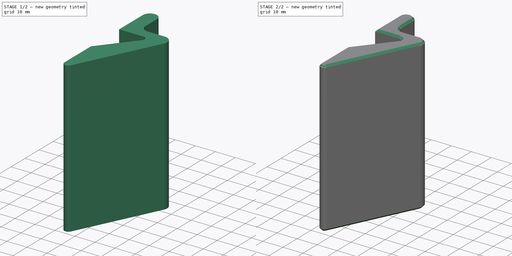
[diagram: build sequence overview — one tinted view per stage of 2, left to right]
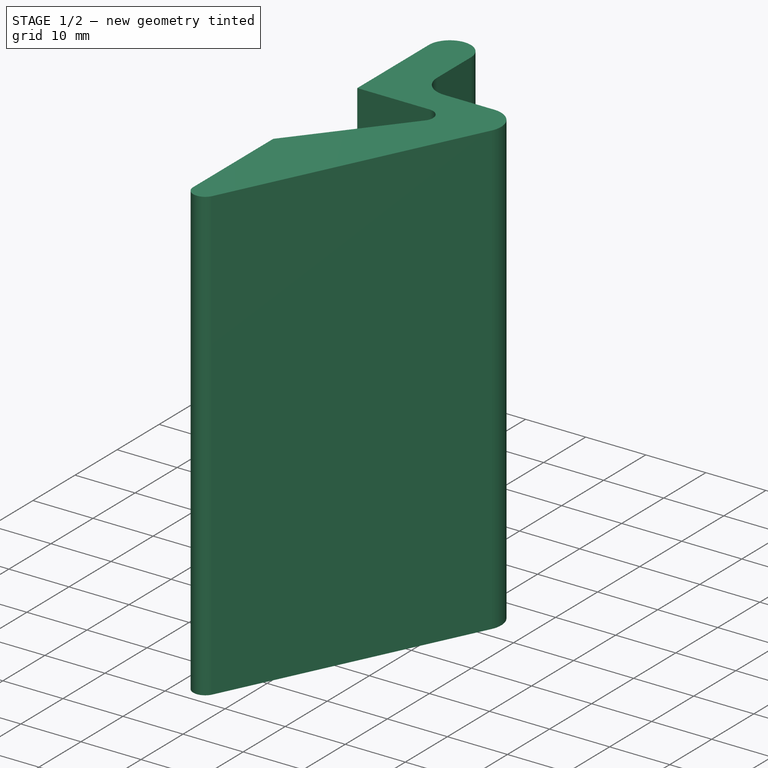
[diagram: stage 1 of 2 — iso view after this stage's code; geometry added in this stage tinted green]
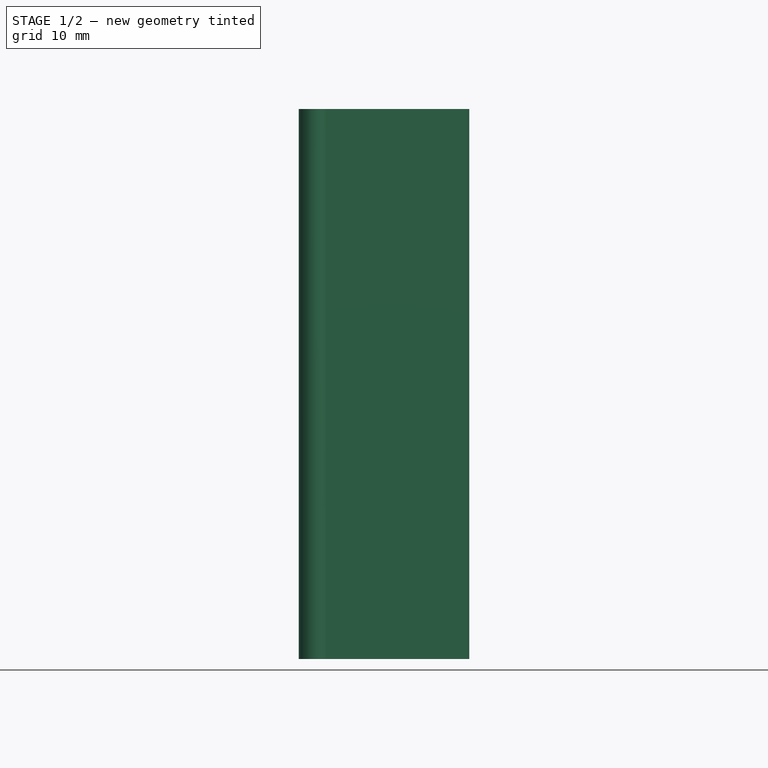
[diagram: stage 1 of 2 — front view after this stage's code; geometry added in this stage tinted green]
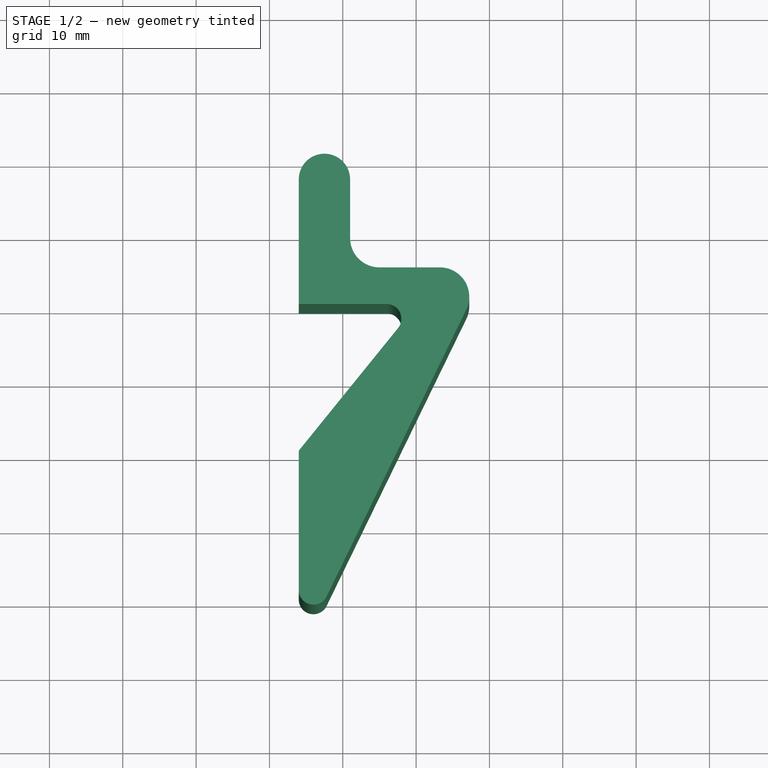
[diagram: stage 1 of 2 — top view after this stage's code; geometry added in this stage tinted green]
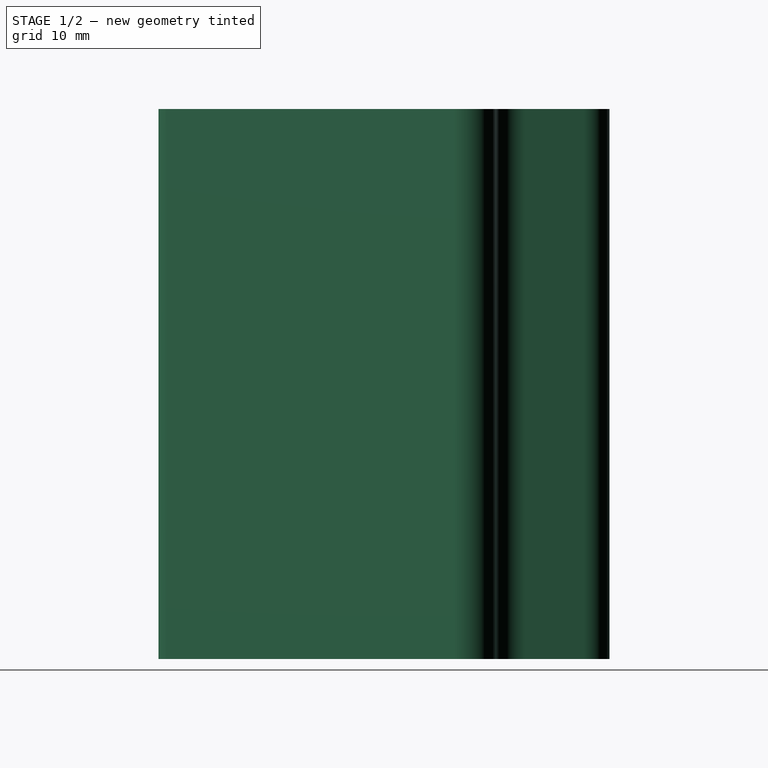
[diagram: stage 1 of 2 — right view after this stage's code; geometry added in this stage tinted green]
FCSTD DOCUMENT  (FreeCAD 0.22R33981 (Git))
Label: shelf support
License: All rights reserved
LicenseURL: http://en.wikipedia.org/wiki/All_rights_reserved
objects: Sketcher::SketchObject×1, PartDesign::Pad×1, PartDesign::Chamfer×1, PartDesign::Body×1
note: 6 computed .brp shape members not serialized (recipe doc carries the construction recipe); baked Part::Feature solids carry a one-line shape summary decoded from their .brp

FEATURE [Sketcher::SketchObject] Sketch
  FullyConstrained = false
  MapMode = 5
  Support = -> [XY_Plane]
  sketch-geometry (12):
    g0: LineSegment StartX=4 StartY=27 StartZ=0 EndX=4 EndY=10 EndZ=0
    g1: LineSegment StartX=4 StartY=10 StartZ=0 EndX=16 EndY=10 EndZ=0
    g2: ArcOfCircle CenterX=16 CenterY=8 CenterZ=0 NormalX=0 NormalY=0 NormalZ=1 AngleXU=0 Radius=2 StartAngle=5.6026 EndAngle=7.85398
    g3: LineSegment StartX=17.5544 StartY=6.7415 StartZ=0 EndX=4 EndY=-10 EndZ=0
    g4: LineSegment StartX=4 StartY=-10 StartZ=0 EndX=4 EndY=-29.0019 EndZ=0
    g5: LineSegment StartX=7.79828 StartY=-29.8773 StartZ=0 EndX=26.8433 EndY=9.24936 EndZ=0
    g6: ArcOfCircle CenterX=23.2468 CenterY=11 CenterZ=0 NormalX=0 NormalY=0 NormalZ=1 AngleXU=0 Radius=4 StartAngle=5.83019 EndAngle=7.85398
    g7: LineSegment StartX=11 StartY=27 StartZ=0 EndX=11 EndY=19 EndZ=0
    g8: LineSegment StartX=15 StartY=15 StartZ=0 EndX=23.2468 EndY=15 EndZ=0
    g9: ArcOfCircle CenterX=15 CenterY=19 CenterZ=0 NormalX=0 NormalY=0 NormalZ=1 AngleXU=0 Radius=4 StartAngle=3.14159 EndAngle=4.71239
    g10: ArcOfCircle CenterX=7.5 CenterY=27 CenterZ=0 NormalX=0 NormalY=0 NormalZ=1 AngleXU=0 Radius=3.5 StartAngle=2e-16 EndAngle=3.14159
    g11: ArcOfCircle CenterX=6 CenterY=-29.0019 CenterZ=0 NormalX=0 NormalY=0 NormalZ=1 AngleXU=0 Radius=2 StartAngle=3.14159 EndAngle=5.83019
  constraints (28):
    c: Vertical(g0)
    c: Coincident(g0,g1)
    c: Horizontal(g1)
    c: Tangent(g1,g2) = 1.5708
    c: Tangent(g2,g3) = 1.5708
    c: Coincident(g3,g4)
    c: Vertical(g4)
    c: Tangent(g5,g6) = -1.5708
    c: Vertical(g7)
    c: Horizontal(g8)
    c: DistanceX(g0,g1) = 12
    c: DistanceY(g3,g0) = 20
    c: Tangent(g8,g6) = 1.5708
    c: Tangent(g8,g9) = -1.5708
    c: Tangent(g7,g9) = -1.5708
    c: Radius(g9) = 4
    c: Tangent(g10,g7) = 1.5708
    c: Tangent(g10,g0) = -1.5708
    c: DistanceY(g7,g7) = 8
    c: Radius(g2) = 2
    c: Radius(g6) = 4
    c: DistanceY(g0,g8) = 5
    c: DistanceX(g0,g7) = 7
    c: Symmetric(g0,g3,g-1)
    c: DistanceX(g-1,g3) = 4
    c: Tangent(g5,g11) = -1.5708
    c: Tangent(g4,g11) = -1.5708
    c: Radius(g11) = 2
FEATURE [PartDesign::Pad] Pad
  Direction = (0,0,1)
  Length = 75
  Length2 = 10
  Profile = -> Sketch
  ReferenceAxis = -> Sketch [N_Axis]
  Type = 0
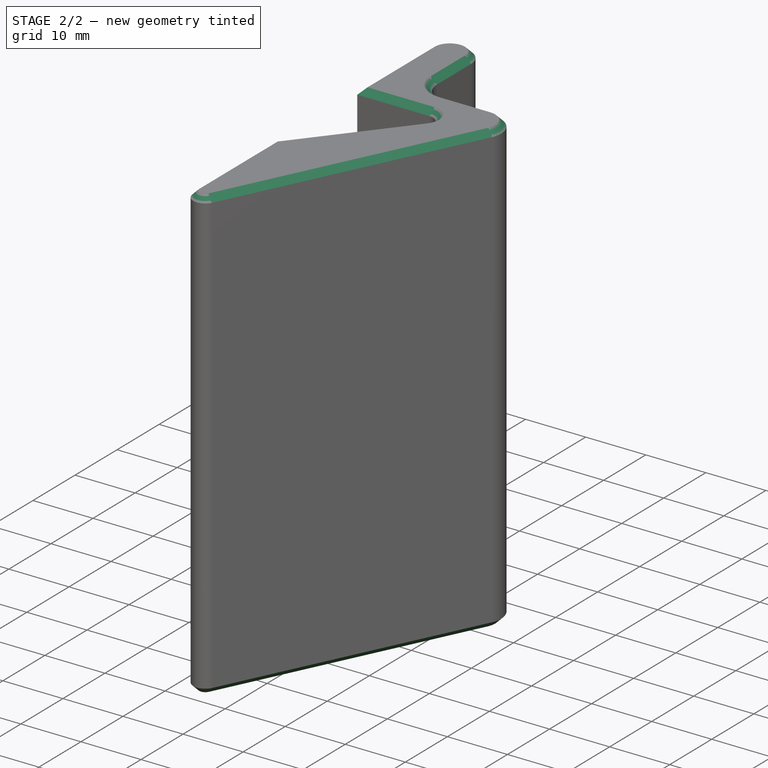
[diagram: stage 2 of 2 — iso view after this stage's code; geometry added in this stage tinted green]
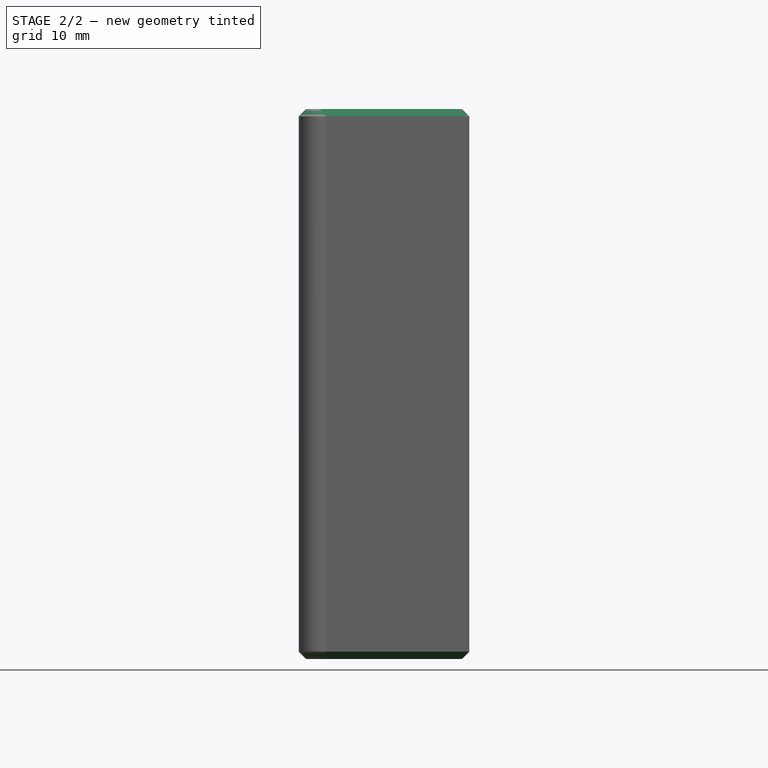
[diagram: stage 2 of 2 — front view after this stage's code; geometry added in this stage tinted green]
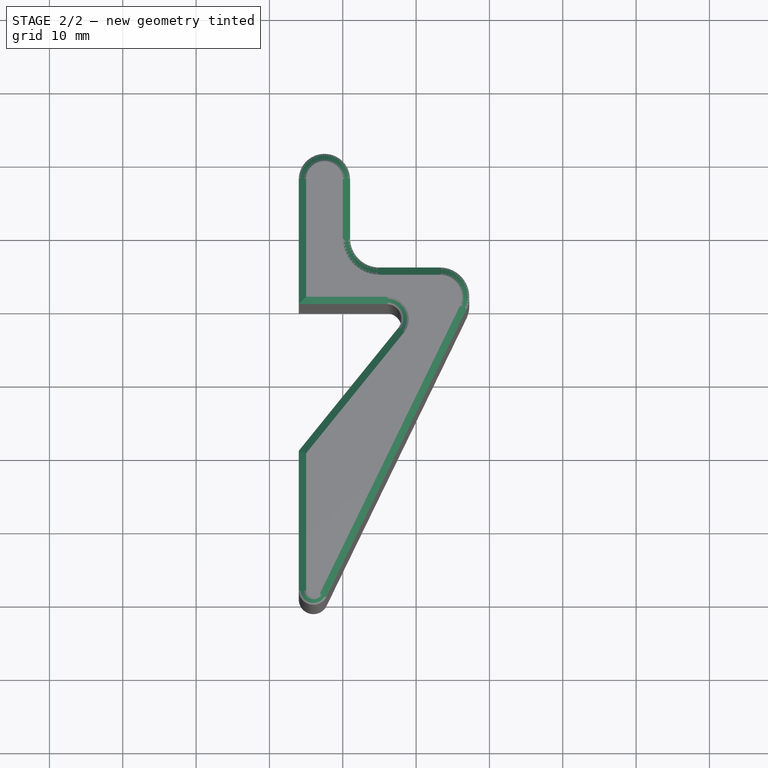
[diagram: stage 2 of 2 — top view after this stage's code; geometry added in this stage tinted green]
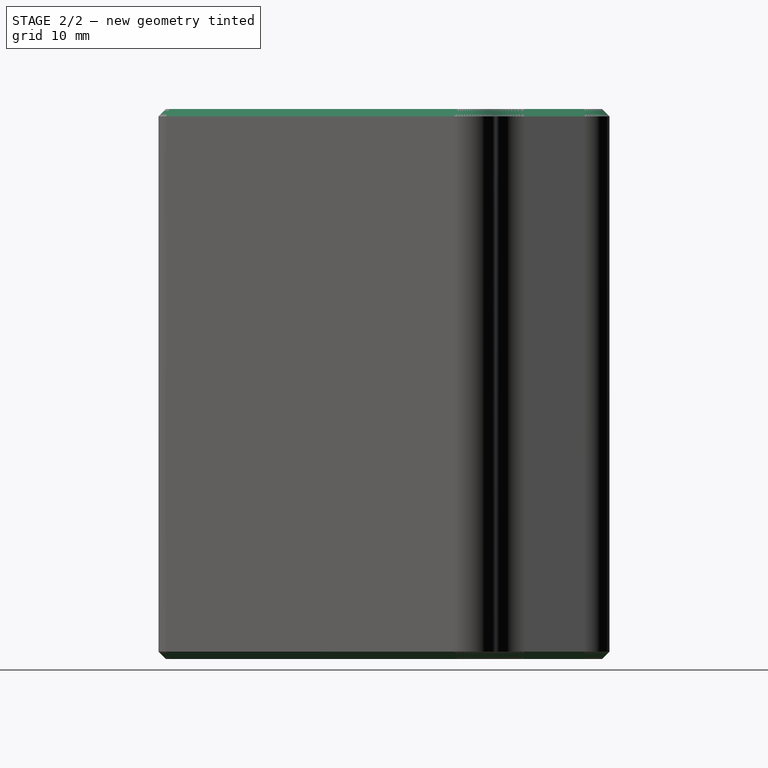
[diagram: stage 2 of 2 — right view after this stage's code; geometry added in this stage tinted green]
FEATURE [PartDesign::Chamfer] Chamfer
  Angle = 45
  Base = -> Pad [Face14,Face13]
  BaseFeature = -> Pad
  ChamferType = 0
  FlipDirection = false
  Size = 1
  Size2 = 1
  SupportTransform = false
  UseAllEdges = false
FEATURE [PartDesign::Body] Body
  Group = -> [Sketch,Pad,Chamfer]
  Origin = -> Origin
  Tip = -> Chamfer
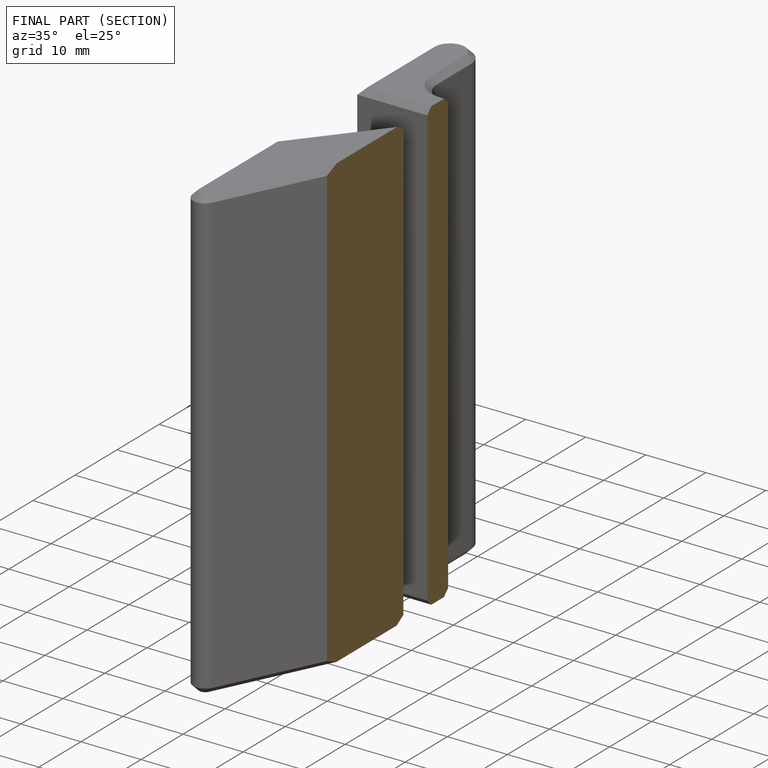
[diagram: finished part — half-section view (interior)]
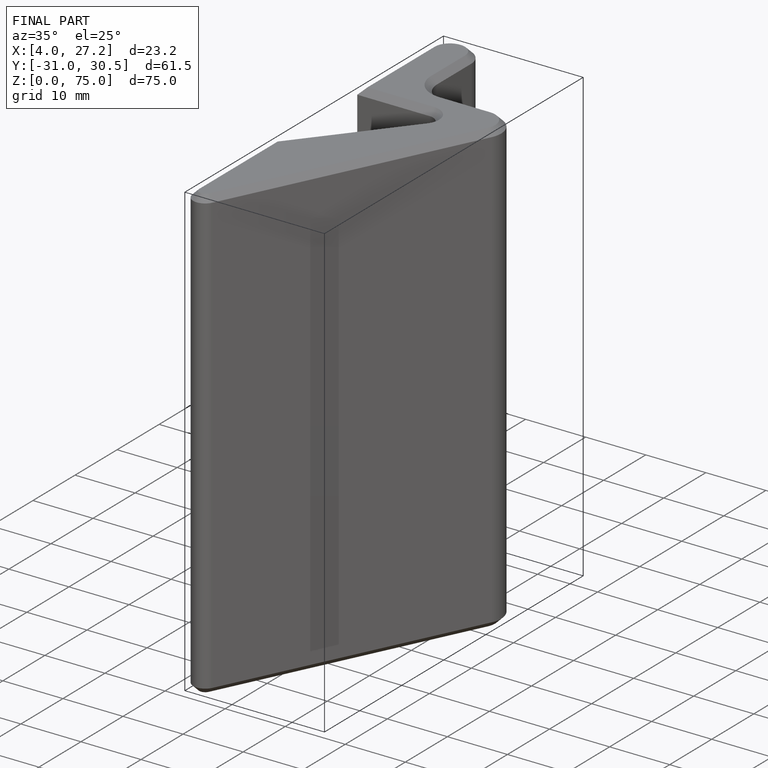
[diagram: finished part — iso view with bounding-box wireframe]
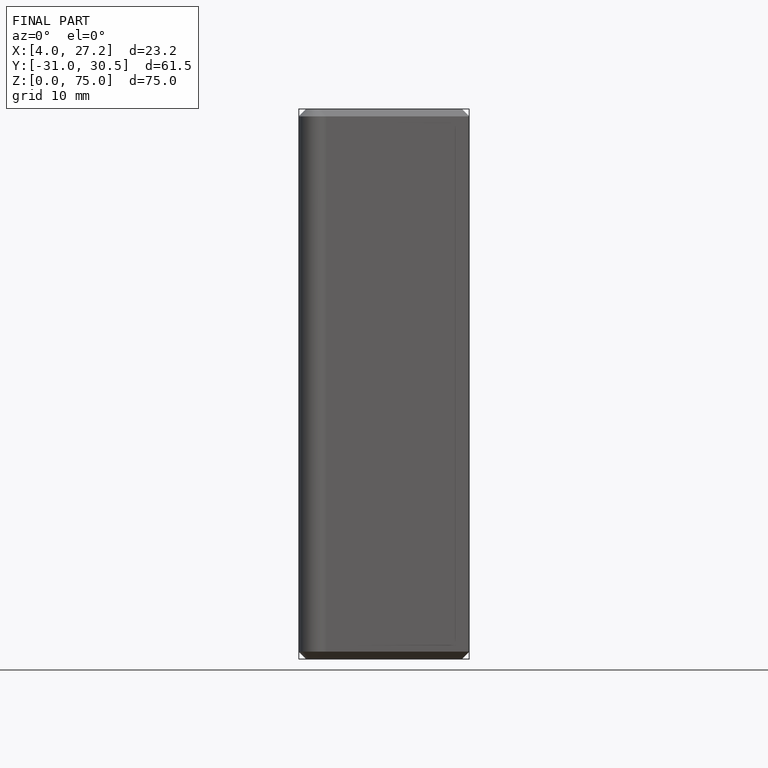
[diagram: finished part — front view with bounding-box wireframe]
